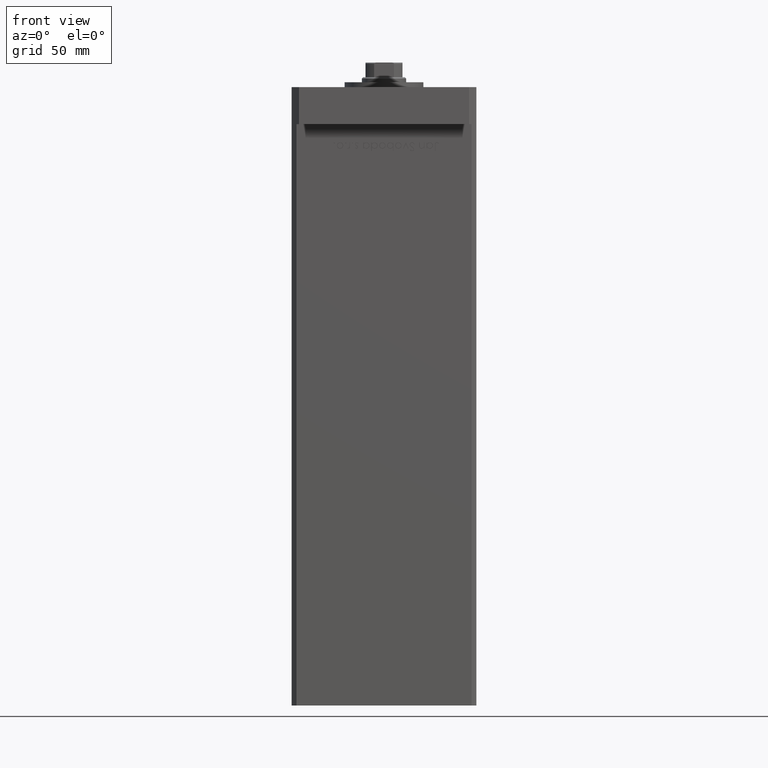
[diagram: clean part render]
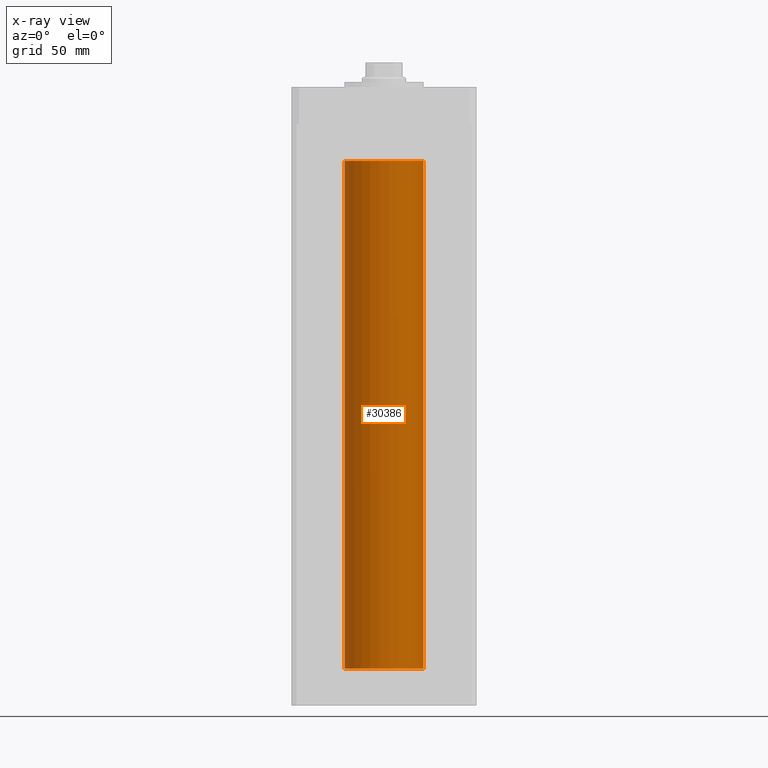
[diagram: x-ray — body ghosted, one internal face saturated and labeled with its STEP entity id]
A machine part, front view, then the same camera in x-ray: the body is ghosted and one INTERNAL B-rep face — a face not visible from any outside direction — is saturated and labeled: STEP entity #30386.
In plain terms, the highlighted cylindrical surface (partial cylindrical patch) has radius 16 mm, axis along (-0, -0, -1).
Its self-contained STEP definition (entity closure, byte-faithful):
#2397 = ORIENTED_EDGE ( 'NONE', *, *, #6822, .F. ) ;
#3664 = CARTESIAN_POINT ( 'NONE',  ( 0.000000000000000000, 0.000000000000000000, 206.0000000000000000 ) ) ;
#6457 = DIRECTION ( 'NONE',  ( -1.000000000000000000, 0.000000000000000000, 0.000000000000000000 ) ) ;
#6709 = CARTESIAN_POINT ( 'NONE',  ( 16.00000000000000000, 1.959434878635765131E-15, 0.000000000000000000 ) ) ;
#6822 = EDGE_CURVE ( 'NONE', #23641, #15973, #36742, .T. ) ;
#7617 = VECTOR ( 'NONE', #32684, 1000.000000000000000 ) ;
#7721 = CYLINDRICAL_SURFACE ( 'NONE', #28902, 16.00000000000000000 ) ;
#8268 = DIRECTION ( 'NONE',  ( -0.000000000000000000, -0.000000000000000000, -1.000000000000000000 ) ) ;
#9125 = CARTESIAN_POINT ( 'NONE',  ( -16.00000000000000000, 0.000000000000000000, 206.0000000000000000 ) ) ;
#9411 = CARTESIAN_POINT ( 'NONE',  ( -16.00000000000000000, 0.000000000000000000, 0.000000000000000000 ) ) ;
#9955 = EDGE_LOOP ( 'NONE', ( #51265, #52547, #44297, #2397 ) ) ;
#13291 = DIRECTION ( 'NONE',  ( -0.000000000000000000, 0.000000000000000000, 1.000000000000000000 ) ) ;
#13794 = DIRECTION ( 'NONE',  ( -0.000000000000000000, 0.000000000000000000, 1.000000000000000000 ) ) ;
#15973 = VERTEX_POINT ( 'NONE', #9411 ) ;
#17353 = CARTESIAN_POINT ( 'NONE',  ( 0.000000000000000000, 0.000000000000000000, 0.000000000000000000 ) ) ;
#17841 = CARTESIAN_POINT ( 'NONE',  ( 0.000000000000000000, 0.000000000000000000, 206.0000000000000000 ) ) ;
#21181 = EDGE_CURVE ( 'NONE', #15973, #39576, #42633, .T. ) ;
#21278 = VERTEX_POINT ( 'NONE', #47426 ) ;
#23641 = VERTEX_POINT ( 'NONE', #9125 ) ;
#24588 = AXIS2_PLACEMENT_3D ( 'NONE', #17841, #13794, #30314 ) ;
#26184 = AXIS2_PLACEMENT_3D ( 'NONE', #17353, #13291, #33632 ) ;
#28422 = EDGE_CURVE ( 'NONE', #23641, #21278, #50535, .T. ) ;
#28617 = CARTESIAN_POINT ( 'NONE',  ( 16.00000000000000000, 1.959434878635765131E-15, 206.0000000000000000 ) ) ;
#28902 = AXIS2_PLACEMENT_3D ( 'NONE', #3664, #44601, #6457 ) ;
#30314 = DIRECTION ( 'NONE',  ( 1.000000000000000000, 0.000000000000000000, 0.000000000000000000 ) ) ;
#30386 = ADVANCED_FACE ( 'NONE', ( #35202 ), #7721, .F. ) ;
#32684 = DIRECTION ( 'NONE',  ( -0.000000000000000000, -0.000000000000000000, -1.000000000000000000 ) ) ;
#32693 = EDGE_CURVE ( 'NONE', #21278, #39576, #37288, .T. ) ;
#33632 = DIRECTION ( 'NONE',  ( 1.000000000000000000, 0.000000000000000000, 0.000000000000000000 ) ) ;
#35202 = FACE_OUTER_BOUND ( 'NONE', #9955, .T. ) ;
#36742 = LINE ( 'NONE', #53262, #7617 ) ;
#37288 = LINE ( 'NONE', #28617, #41996 ) ;
#39576 = VERTEX_POINT ( 'NONE', #6709 ) ;
#41996 = VECTOR ( 'NONE', #8268, 1000.000000000000000 ) ;
#42633 = CIRCLE ( 'NONE', #26184, 16.00000000000000000 ) ;
#44297 = ORIENTED_EDGE ( 'NONE', *, *, #21181, .F. ) ;
#44601 = DIRECTION ( 'NONE',  ( -0.000000000000000000, -0.000000000000000000, -1.000000000000000000 ) ) ;
#47426 = CARTESIAN_POINT ( 'NONE',  ( 16.00000000000000000, 1.959434878635765131E-15, 206.0000000000000000 ) ) ;
#50535 = CIRCLE ( 'NONE', #24588, 16.00000000000000000 ) ;
#51265 = ORIENTED_EDGE ( 'NONE', *, *, #28422, .T. ) ;
#52547 = ORIENTED_EDGE ( 'NONE', *, *, #32693, .T. ) ;
#53262 = CARTESIAN_POINT ( 'NONE',  ( -16.00000000000000000, 0.000000000000000000, 206.0000000000000000 ) ) ;